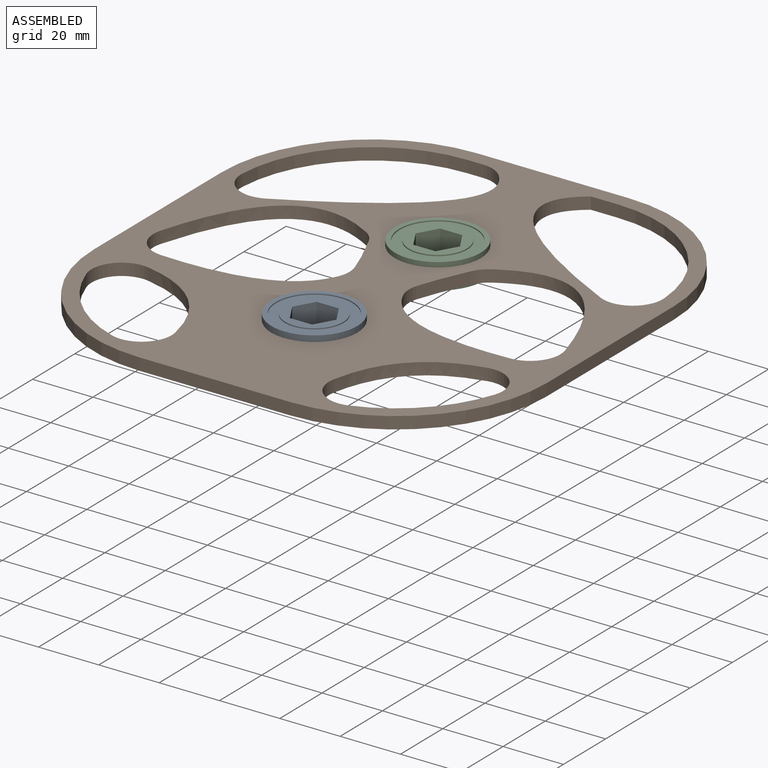
[diagram: assembled view]
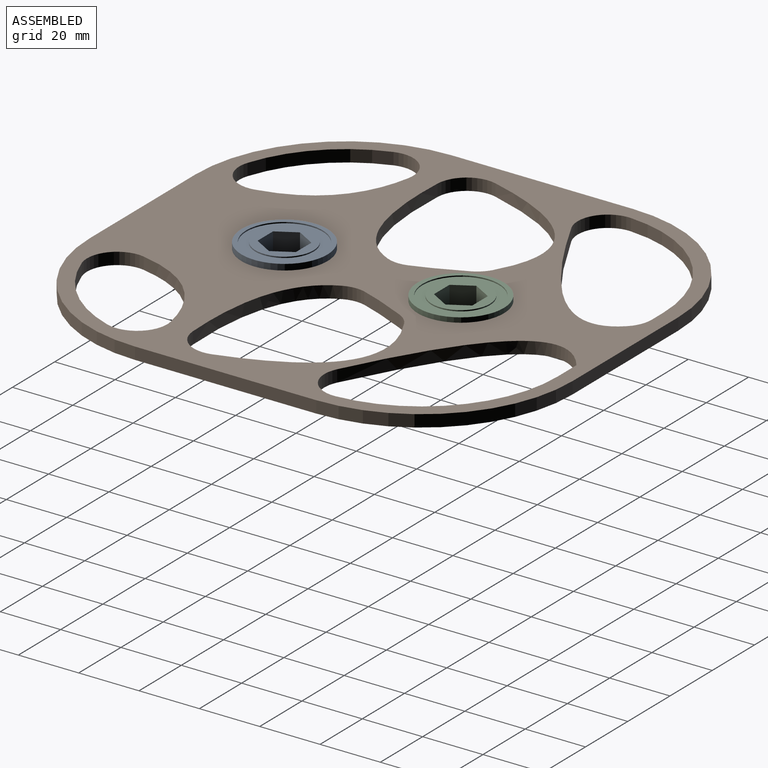
[diagram: assembled view, second angle]
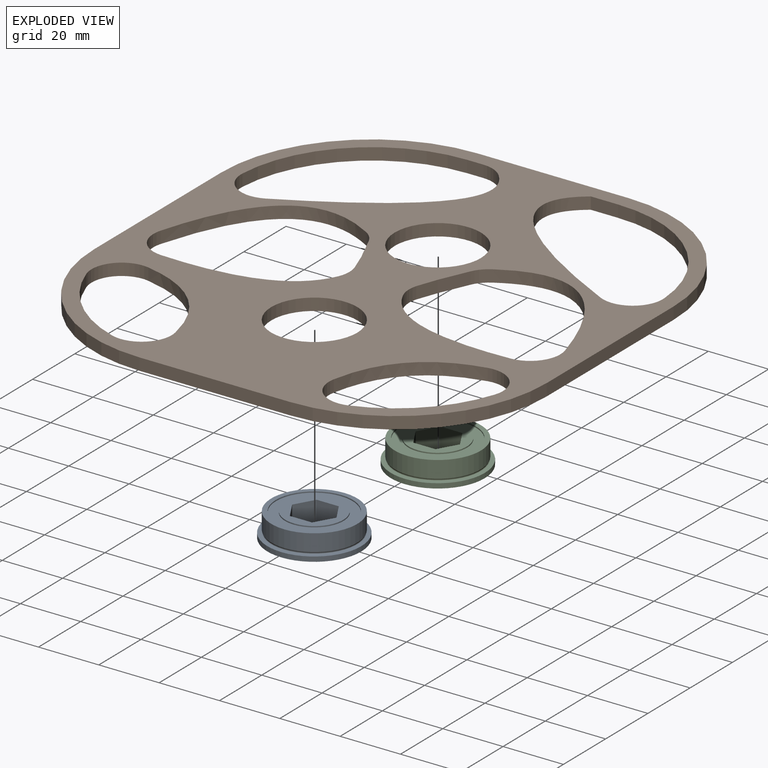
[diagram: exploded view]
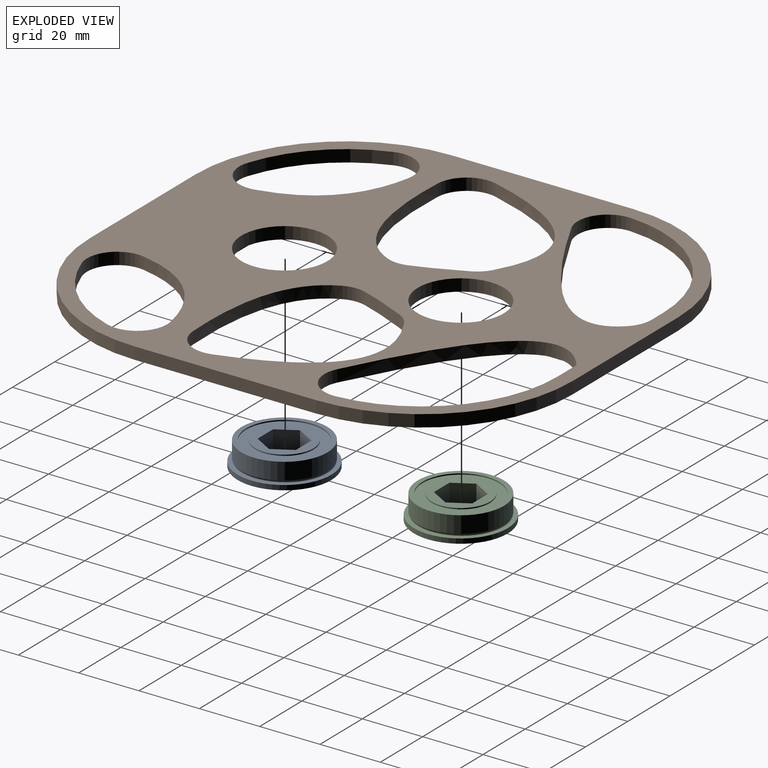
[diagram: exploded view, second angle]
ASSEMBLY  parts=3 mates=2
PART A: 21 faces, bbox 31.1x7.9x31.1 mm
  f0: torus R=14.27mm, axis (0,1,0), area 46.4mm2, adj f4,f10
  f1: cylinder r=9.65mm len=19.3mm, axis (0,1,0), area 23.1mm2, adj f12,f13
  f2: cylinder r=12.7mm len=25.4mm, axis (0,1,0), area 30.4mm2, adj f11,f12
  f3: cylinder r=14.27mm len=28.55mm, axis (0,1,0), area 502.3mm2, adj f4,f11
  f4: cone r=14.06mm half-angle=30deg, axis (0,-1,0), area 38.5mm2, adj f0,f3
  f5: cylinder r=15.56mm len=31.12mm, axis (0,1,0), area 155.2mm2, adj f9,f10
  f6: cylinder r=12.7mm len=25.4mm, axis (0,1,0), area 30.4mm2, adj f8,f9
  f7: cylinder r=9.65mm len=19.3mm, axis (0,1,0), area 23.1mm2, adj f8,f14
  f8: plane 25.4x25.4mm, normal (0,1,0), area 214mm2, adj f6,f7
  f9: plane 31.12x31.12mm, normal (0,1,0), area 253.7mm2, adj f5,f6
  f10: plane 31.12x31.12mm, normal (0,-1,0), area 120.2mm2, adj f0,f5
  f11: plane 28.55x28.55mm, normal (0,-1,0), area 133.5mm2, adj f2,f3
  f12: plane 25.4x25.4mm, normal (0,-1,0), area 214mm2, adj f1,f2
  f13: plane 19.3x19.3mm, normal (0,-1,0), area 152.6mm2, adj f1,f15,f16,f17,f18,f19,f20
  f14: plane 19.3x19.3mm, normal (0,1,0), area 152.6mm2, adj f7,f15,f16,f17,f18,f19,f20
  f15: plane 7.94x6.36mm, normal (-0.87,0,0.5), area 58.3mm2, adj f13,f14,f16,f20
  f16: plane 7.94x6.36mm, normal (-0.87,0,-0.5), area 58.3mm2, adj f13,f14,f15,f17
  f17: plane 7.94x7.34mm, normal (0,0,-1), area 58.3mm2, adj f13,f14,f16,f18
  f18: plane 7.94x6.36mm, normal (0.87,0,-0.5), area 58.3mm2, adj f13,f14,f17,f19
  f19: plane 7.94x6.36mm, normal (0.87,0,0.5), area 58.3mm2, adj f13,f14,f18,f20
  f20: plane 7.94x7.34mm, normal (0,0,1), area 58.3mm2, adj f13,f14,f15,f19
PART B: 41 faces, bbox 150x160x4 mm
  f0: plane 160.04x150mm, normal (0,0,1), area 9886.1mm2, adj f2,f3,f4,f5,f6,f7,f8,f9
  f1: plane 160.04x150mm, normal (0,0,-1), area 9886.1mm2, adj f2,f3,f4,f5,f6,f7,f8,f9
  f2: plane 50x4mm, normal (0,1,0), area 200mm2, adj f0,f1,f8,f11
  f3: plane 60.04x4mm, normal (-1,0,0), area 240.2mm2, adj f0,f1,f8,f9
  f4: plane 50x4mm, normal (0,-1,0), area 200mm2, adj f0,f1,f9,f10
  f5: cylinder r=14.29mm len=28.58mm, axis (0,0,-1), area 359.1mm2, adj f0,f1
  f6: cylinder r=14.29mm len=28.58mm, axis (0,0,-1), area 359.1mm2, adj f0,f1
  f7: plane 60.04x4mm, normal (1,0,0), area 240.2mm2, adj f0,f1,f10,f11
  f8: cylinder r=50mm len=50mm, axis (0,0,-1), area 314.2mm2, adj f0,f1,f2,f3
  f9: cylinder r=50mm len=50mm, axis (0,0,-1), area 314.2mm2, adj f0,f1,f3,f4
  f10: cylinder r=50mm len=50mm, axis (0,0,1), area 314.2mm2, adj f0,f1,f4,f7
  f11: cylinder r=50mm len=50mm, axis (0,0,1), area 314.2mm2, adj f0,f1,f2,f7
  f12: extruded ~30x30mm, area 181.5mm2, adj f0,f1,f39,f40
  f13: cylinder r=45mm len=28.48mm, axis (0,0,-1), area 167mm2, adj f0,f1,f39,f40
  f14: plane 8.98x4mm, normal (0,-1,0), area 35.9mm2, adj f0,f1,f15,f16
  f15: cylinder r=45mm len=44.91mm, axis (0,0,-1), area 271.4mm2, adj f0,f1,f14,f28
  f16: extruded ~51.74x47.02mm, area 313.8mm2, adj f0,f1,f14,f28
  f17: extruded ~46.13x36.43mm, area 270.5mm2, adj f0,f1,f29,f31
  f18: extruded ~47.27x16.73mm, area 212.5mm2, adj f0,f1,f30,f31
  f19: extruded ~16.27x6.65mm, area 70.3mm2, adj f0,f1,f29,f30
  f20: extruded ~30x30mm, area 181.5mm2, adj f0,f1,f32,f33
  f21: cylinder r=45mm len=28.48mm, axis (0,0,-1), area 167mm2, adj f0,f1,f32,f33
  f22: extruded ~47.27x16.73mm, area 212.5mm2, adj f0,f1,f36,f38
  f23: extruded ~46.13x36.43mm, area 270.5mm2, adj f0,f1,f36,f37
  f24: extruded ~16.27x6.65mm, area 70.3mm2, adj f0,f1,f37,f38
  f25: extruded ~48.64x47.02mm, area 294.7mm2, adj f0,f1,f34,f35
  f26: cylinder r=45mm len=44.91mm, axis (0,0,-1), area 271.4mm2, adj f0,f1,f27,f35
  f27: plane 5.37x4mm, normal (0,-1,0), area 21.5mm2, adj f0,f1,f26,f34
  f28: cylinder r=10mm len=14.46mm, axis (0,0,-1), area 83.9mm2, adj f0,f1,f15,f16
  f29: cylinder r=10mm len=4.43mm, axis (0,0,-1), area 24.3mm2, adj f0,f1,f17,f19
  f30: cylinder r=10mm len=6.9mm, axis (0,0,-1), area 28.2mm2, adj f0,f1,f18,f19
  f31: cylinder r=10mm len=12.75mm, axis (0,0,-1), area 72mm2, adj f0,f1,f17,f18
  f32: cylinder r=10mm len=13.16mm, axis (0,0,-1), area 83.6mm2, adj f0,f1,f20,f21
  f33: cylinder r=10mm len=13.16mm, axis (0,0,-1), area 83.6mm2, adj f0,f1,f20,f21
  f34: cylinder r=10mm len=7.24mm, axis (0,0,-1), area 32.4mm2, adj f0,f1,f25,f27
  f35: cylinder r=10mm len=14.46mm, axis (0,0,-1), area 83.9mm2, adj f0,f1,f25,f26
  f36: cylinder r=10mm len=12.75mm, axis (0,0,-1), area 72mm2, adj f0,f1,f22,f23
  f37: cylinder r=10mm len=4.43mm, axis (0,0,-1), area 24.3mm2, adj f0,f1,f23,f24
  f38: cylinder r=10mm len=6.9mm, axis (0,0,-1), area 28.2mm2, adj f0,f1,f22,f24
  f39: cylinder r=10mm len=13.16mm, axis (0,0,-1), area 83.6mm2, adj f0,f1,f12,f13
  f40: cylinder r=10mm len=13.16mm, axis (0,0,-1), area 83.6mm2, adj f0,f1,f12,f13
PART C: same geometry as A
PLACE A rot(axis=(-1,0,0),90deg) t=(-14.44,-45.9,19.64)mm
PLACE B t=(-14.44,-15.92,13.66)mm
PLACE C rot(axis=(-1,0,0),90deg) t=(-14.44,12.57,19.26)mm
MATE revolute C.f0 <-> B.f5  axis (0,0,-1) through (-14.44,12.57,13.66)mm
MATE revolute A.f0 <-> B.f6  axis (0,0,-1) through (-14.44,-45.9,13.66)mm
